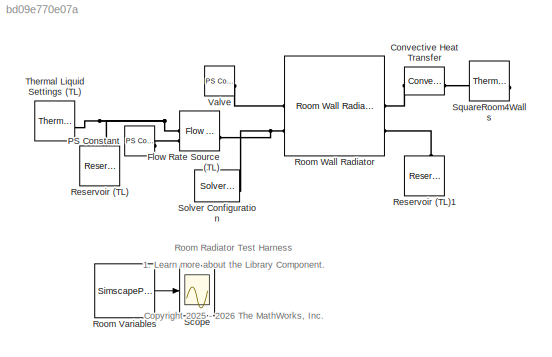
MODEL slx_bd09e770e07a
KIND model
CONFIG AbsTol = 1e-3
CONFIG EnableMultiTasking = off
CONFIG FixedStep = 3600
CONFIG MaxStep = 3
CONFIG MinStep = auto
CONFIG PreLoadFcn = WallModelParams
CONFIG RelTol = 1e-3
CONFIG SampleTimeConstraint = Unconstrained
CONFIG SolverName = daessc
CONFIG StartTime = 0.0
CONFIG StopTime = 7200
BLOCK [Reference] Convective Heat Transfer  REF=fl_lib/Thermal/Thermal Elements/Convective Heat
Transfer
  SourceBlock = fl_lib/Thermal/Thermal Elements/Convective Heat\nTransfer
  SourceType = Convective Heat\nTransfer
BLOCK [Reference] Flow Rate Source (TL)  REF=fl_lib/Thermal Liquid/Sources/Flow Rate Source
(TL)
  SourceBlock = fl_lib/Thermal Liquid/Sources/Flow Rate Source\n(TL)
  SourceType = Flow Rate Source\n(TL)
BLOCK [Reference] PS Constant  REF=fl_lib/Physical Signals/Sources/PS Constant
  SourceBlock = fl_lib/Physical Signals/Sources/PS Constant
  SourceType = PS Constant
BLOCK [Reference] Reservoir (TL)  REF=fl_lib/Thermal Liquid/Elements/Reservoir (TL)
  NameLocation = right
  SourceBlock = fl_lib/Thermal Liquid/Elements/Reservoir (TL)
  SourceType = Reservoir (TL)
BLOCK [Reference] Reservoir (TL)1  REF=fl_lib/Thermal Liquid/Elements/Reservoir (TL)
  NameLocation = right
  SourceBlock = fl_lib/Thermal Liquid/Elements/Reservoir (TL)
  SourceType = Reservoir (TL)
BLOCK [SimscapeProbe] Room Variables
  BoundBlock = 269
  Variables = {T}
BLOCK [Reference] Room Wall Radiator  REF=RoomRadiator_lib/Room Wall Radiator
  SourceBlock = RoomRadiator_lib/Room Wall Radiator
  SourceType = Room Wall Radiator
BLOCK [Scope] Scope
  ActiveDisplayYMaximum = 314.6247
  ActiveDisplayYMinimum = 298.37767
  Floating = off
  GraphicalSettings = {"GraphicalSettings":{"LegacySettings":true,"Style":{"AxesScalingProperties":{"ScaleAxesLimitsAtStop":false},"Style":{"AxesColor":"[0 0 0]","ChannelNames":[""],"ColorOrder":"[1 0.909803921568627 0.392156862745098;0.149019607843137 0.549019607843137 0.866666666666667;0.96078431372549 0.466666666666667 0.16078431372549;0.286274509803922 0.858823529411765 0.250980392156863;0.752941176470588 0.3607843...<+513ch>
  MultipleDisplayCache = [{"MaxYLimMag":314.6247,"MaxYLimReal":314.6247,"MinYLimMag":298.37767,"MinYLimReal":298.37767,"PlotAsMagnitudePhase":false,"ShowGrid":true,"ShowLegend":false,"Title":"%<SignalLabel>","YLabel":""}]
  NumInputPorts = 1
  WasSavedAsWebScope = on
  WindowPosition = [908 398 314 398]
BLOCK [Reference] Solver Configuration  REF=nesl_utility/Solver
Configuration
  NameLocation = left
  SourceBlock = nesl_utility/Solver\nConfiguration
  SourceType = Solver\nConfiguration
BLOCK [Reference] SquareRoom4Walls  REF=fl_lib/Thermal/Thermal Elements/Thermal Mass
  SourceBlock = fl_lib/Thermal/Thermal Elements/Thermal Mass
  SourceType = Thermal Mass
BLOCK [Reference] Thermal Liquid Settings (TL)  REF=fl_lib/Thermal Liquid/Utilities/Thermal Liquid
Settings (TL)
  SourceBlock = fl_lib/Thermal Liquid/Utilities/Thermal Liquid\nSettings (TL)
  SourceType = Thermal Liquid\nSettings (TL)
BLOCK [Reference] Valve  REF=fl_lib/Physical Signals/Sources/PS Constant
  SourceBlock = fl_lib/Physical Signals/Sources/PS Constant
  SourceType = PS Constant
ANNOTATION (root): 1. Learn more about the Library Component.
ANNOTATION (root): <copyright redacted>
ANNOTATION (root): Room Radiator Test Harness
LINE Room Variables:1 -> Scope:1
PLINE Convective Heat Transfer:LConn1 -- Room Wall Radiator:RConn1
PLINE Convective Heat Transfer:RConn1 -- SquareRoom4Walls:LConn1
PNET net1: Flow Rate Source (TL):LConn1 -- Reservoir (TL):LConn1 -- Thermal Liquid Settings (TL):RConn1
PLINE Flow Rate Source (TL):LConn2 -- PS Constant:RConn1
PNET net2: Flow Rate Source (TL):RConn1 -- Room Wall Radiator:LConn2 -- Solver Configuration:RConn1
PLINE Reservoir (TL)1:LConn1 -- Room Wall Radiator:RConn2
PLINE Room Wall Radiator:LConn1 -- Valve:RConn1
note: PNET lines group multi-terminal physical nets as a canonical sorted terminal list (undirected conserving connections); 2-terminal nets keep the pairwise PLINE form
